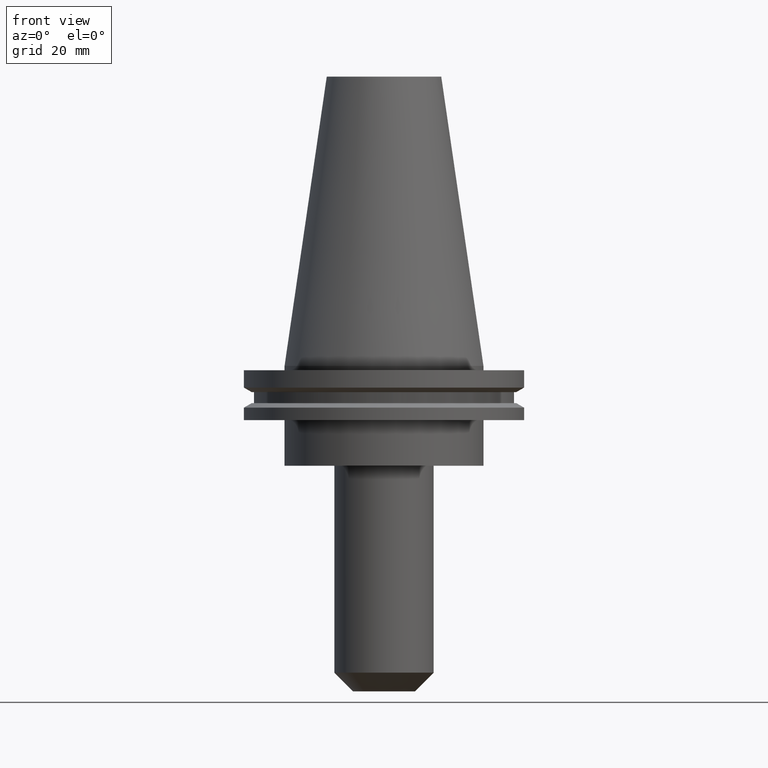
[diagram: clean part render]
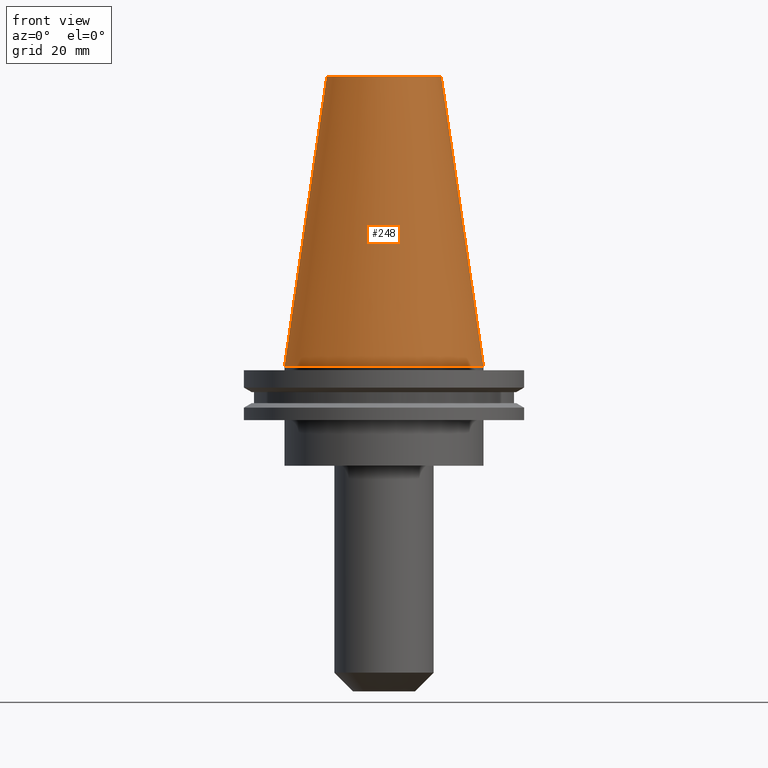
[diagram: same view with one face highlighted and labeled with its STEP entity id]
A machine part, front view. The second image highlights one B-rep face of the part: STEP entity #248.
In plain terms, the highlighted conical surface has half-angle 8.297 deg.
Its self-contained STEP definition (entity closure, byte-faithful):
#4 = ORIENTED_EDGE ( 'NONE', *, *, #253, .F. ) ;
#11 = FACE_OUTER_BOUND ( 'NONE', #12, .T. ) ;
#12 = EDGE_LOOP ( 'NONE', ( #4, #764, #500, #728 ) ) ;
#19 = DIRECTION ( 'NONE',  ( 0.1443082272672999988, 1.767266086135277066E-17, -0.9895327864921755756 ) ) ;
#30 = EDGE_CURVE ( 'NONE', #255, #77, #367, .T. ) ;
#58 = EDGE_CURVE ( 'NONE', #255, #275, #786, .T. ) ;
#61 = CARTESIAN_POINT ( 'NONE',  ( 34.92499999999999005, 4.277078946022130098E-15, 0.000000000000000000 ) ) ;
#77 = VERTEX_POINT ( 'NONE', #486 ) ;
#87 = EDGE_CURVE ( 'NONE', #77, #177, #687, .T. ) ;
#154 = VECTOR ( 'NONE', #302, 999.9999999999998863 ) ;
#157 = DIRECTION ( 'NONE',  ( 0.000000000000000000, 0.000000000000000000, -1.000000000000000000 ) ) ;
#177 = VERTEX_POINT ( 'NONE', #61 ) ;
#215 = CARTESIAN_POINT ( 'NONE',  ( 0.000000000000000000, 0.000000000000000000, 0.000000000000000000 ) ) ;
#248 = ADVANCED_FACE ( 'NONE', ( #11 ), #422, .T. ) ;
#250 = DIRECTION ( 'NONE',  ( -0.000000000000000000, -0.000000000000000000, 1.000000000000000000 ) ) ;
#253 = EDGE_CURVE ( 'NONE', #275, #177, #736, .T. ) ;
#255 = VERTEX_POINT ( 'NONE', #806 ) ;
#259 = AXIS2_PLACEMENT_3D ( 'NONE', #623, #250, #370 ) ;
#275 = VERTEX_POINT ( 'NONE', #475 ) ;
#291 = CARTESIAN_POINT ( 'NONE',  ( 0.000000000000000000, 0.000000000000000000, 101.5999999999999801 ) ) ;
#302 = DIRECTION ( 'NONE',  ( -0.1443082272672999988, 0.000000000000000000, -0.9895327864921755756 ) ) ;
#367 = LINE ( 'NONE', #614, #154 ) ;
#370 = DIRECTION ( 'NONE',  ( 1.000000000000000000, 0.000000000000000000, 0.000000000000000000 ) ) ;
#422 = CONICAL_SURFACE ( 'NONE', #673, 34.92499999999999005, 0.1448138465474119452 ) ;
#475 = CARTESIAN_POINT ( 'NONE',  ( 20.10819343178871321, 3.369811209154858606E-15, 101.5999999999999801 ) ) ;
#486 = CARTESIAN_POINT ( 'NONE',  ( -34.92499999999999005, 0.000000000000000000, 0.000000000000000000 ) ) ;
#500 = ORIENTED_EDGE ( 'NONE', *, *, #30, .T. ) ;
#538 = DIRECTION ( 'NONE',  ( -1.000000000000000000, 0.000000000000000000, 0.000000000000000000 ) ) ;
#553 = DIRECTION ( 'NONE',  ( -0.000000000000000000, -0.000000000000000000, 1.000000000000000000 ) ) ;
#605 = CARTESIAN_POINT ( 'NONE',  ( 34.92499999999999005, 4.277078946022130098E-15, 0.000000000000000000 ) ) ;
#614 = CARTESIAN_POINT ( 'NONE',  ( -34.92499999999999005, 0.000000000000000000, 0.000000000000000000 ) ) ;
#616 = VECTOR ( 'NONE', #19, 999.9999999999998863 ) ;
#623 = CARTESIAN_POINT ( 'NONE',  ( 0.000000000000000000, 0.000000000000000000, 0.000000000000000000 ) ) ;
#629 = AXIS2_PLACEMENT_3D ( 'NONE', #291, #553, #819 ) ;
#673 = AXIS2_PLACEMENT_3D ( 'NONE', #215, #157, #538 ) ;
#687 = CIRCLE ( 'NONE', #259, 34.92499999999999005 ) ;
#728 = ORIENTED_EDGE ( 'NONE', *, *, #87, .T. ) ;
#736 = LINE ( 'NONE', #605, #616 ) ;
#764 = ORIENTED_EDGE ( 'NONE', *, *, #58, .F. ) ;
#786 = CIRCLE ( 'NONE', #629, 20.10819343178871321 ) ;
#806 = CARTESIAN_POINT ( 'NONE',  ( -20.10819343178871321, 0.000000000000000000, 101.5999999999999801 ) ) ;
#819 = DIRECTION ( 'NONE',  ( 1.000000000000000000, 0.000000000000000000, 0.000000000000000000 ) ) ;